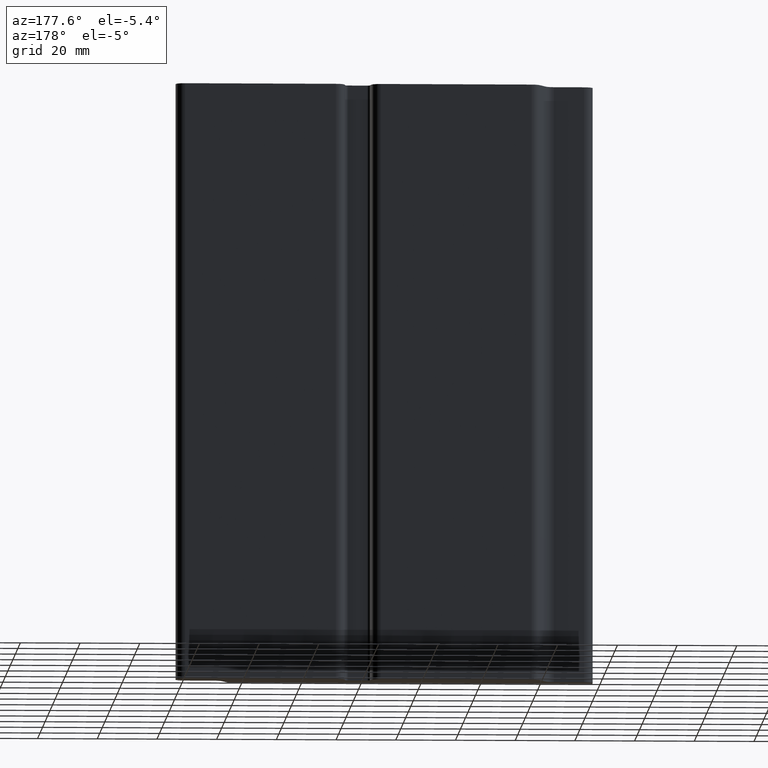
[diagram: clean part render]
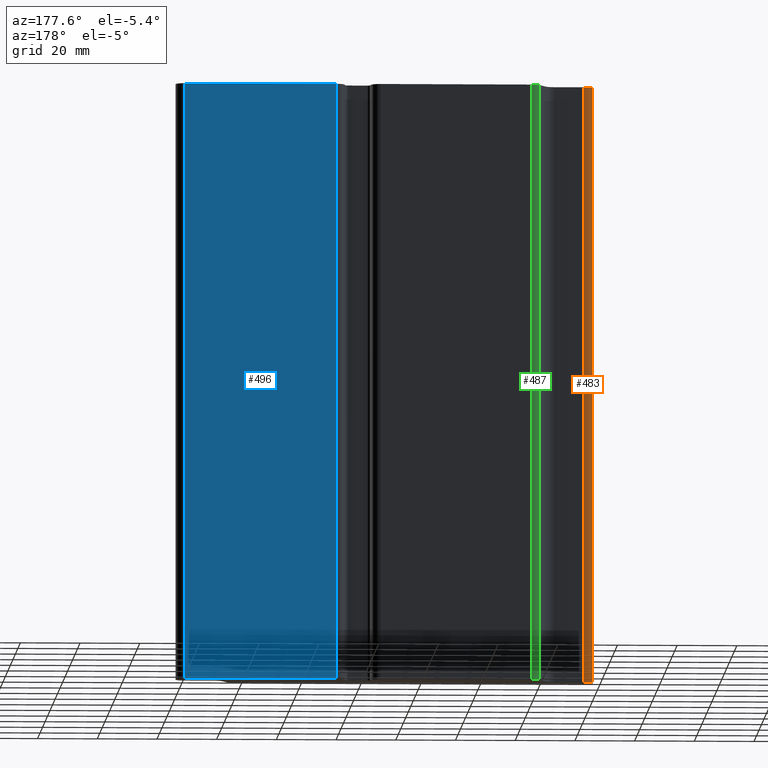
[diagram: same view with three faces highlighted in distinct colors, each labeled with its STEP entity id]
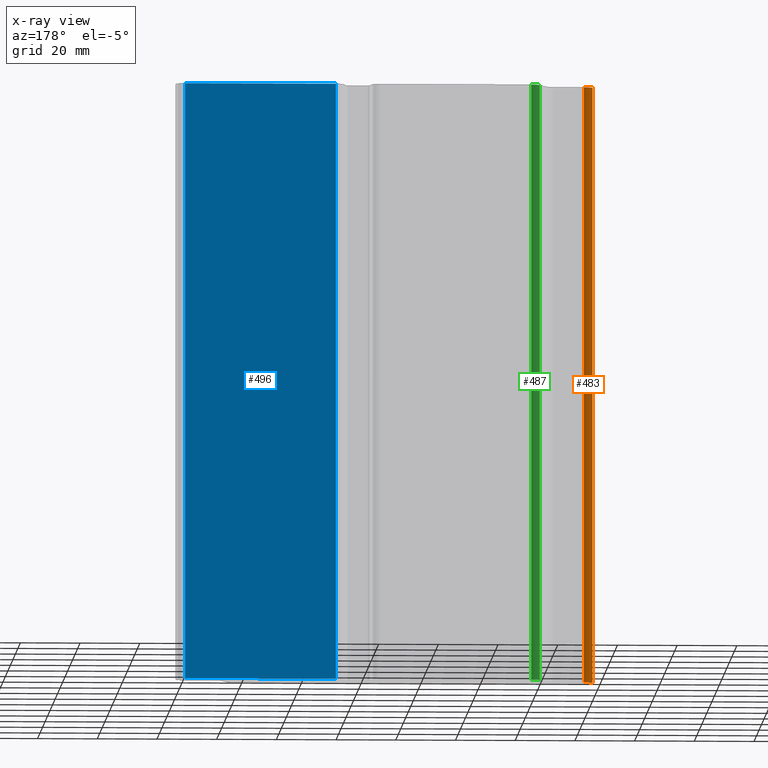
[diagram: x-ray of the same camera — body ghosted, the three highlighted faces saturated]
A machine part, auxiliary view with three faces highlighted in distinct colors.
The next image is the same camera in x-ray (body ghosted, the three faces saturated) — at least one of them is partly hidden behind the body in this view.
Their STEP definitions:

[orange] entity #483 — the highlighted cylindrical surface (edge-blend (fillet) strip) has radius 3 mm, axis along (0, 0, 1).
#35=FACE_OUTER_BOUND('',#61,.T.);
#61=EDGE_LOOP('',(#345,#346,#347,#348));
#93=LINE('',#756,#141);
#94=LINE('',#762,#142);
#141=VECTOR('',#605,10.);
#142=VECTOR('',#612,10.);
#183=CIRCLE('',#530,2.99999999998906);
#184=CIRCLE('',#531,2.99999999998906);
#213=VERTEX_POINT('',#752);
#214=VERTEX_POINT('',#754);
#215=VERTEX_POINT('',#758);
#216=VERTEX_POINT('',#760);
#267=EDGE_CURVE('',#213,#214,#93,.T.);
#268=EDGE_CURVE('',#215,#213,#183,.T.);
#269=EDGE_CURVE('',#216,#214,#184,.T.);
#270=EDGE_CURVE('',#215,#216,#94,.T.);
#345=ORIENTED_EDGE('',*,*,#268,.T.);
#346=ORIENTED_EDGE('',*,*,#267,.T.);
#347=ORIENTED_EDGE('',*,*,#269,.F.);
#348=ORIENTED_EDGE('',*,*,#270,.F.);
#468=CYLINDRICAL_SURFACE('',#529,2.99999999998906);
#483=ADVANCED_FACE('',(#35),#468,.T.);
#529=AXIS2_PLACEMENT_3D('',#757,#606,#607);
#530=AXIS2_PLACEMENT_3D('',#759,#608,#609);
#531=AXIS2_PLACEMENT_3D('',#761,#610,#611);
#605=DIRECTION('',(0.,0.,1.));
#606=DIRECTION('center_axis',(0.,0.,1.));
#607=DIRECTION('ref_axis',(2.96059473234455E-15,1.,0.));
#608=DIRECTION('center_axis',(0.,0.,1.));
#609=DIRECTION('ref_axis',(2.96059473234455E-15,1.,0.));
#610=DIRECTION('center_axis',(0.,0.,1.));
#611=DIRECTION('ref_axis',(2.96059473234455E-15,1.,0.));
#612=DIRECTION('',(0.,0.,1.));
#752=CARTESIAN_POINT('',(-78.9776404737594,6.00000000001094,0.));
#754=CARTESIAN_POINT('',(-78.9776404737594,6.00000000001094,200.));
#756=CARTESIAN_POINT('',(-78.9776404737594,6.00000000001094,0.));
#757=CARTESIAN_POINT('Origin',(-75.9776404737704,6.00000000001094,0.));
#758=CARTESIAN_POINT('',(-75.9776404737704,9.,0.));
#759=CARTESIAN_POINT('Origin',(-75.9776404737704,6.00000000001094,0.));
#760=CARTESIAN_POINT('',(-75.9776404737704,9.,200.));
#761=CARTESIAN_POINT('Origin',(-75.9776404737704,6.00000000001094,200.));
#762=CARTESIAN_POINT('',(-75.9776404737704,9.,0.));

[blue] entity #496 — the highlighted planar face has unit normal (0, 1, 0).
#24=PLANE('',#556);
#48=FACE_OUTER_BOUND('',#74,.T.);
#74=EDGE_LOOP('',(#397,#398,#399,#400));
#118=LINE('',#834,#166);
#119=LINE('',#837,#167);
#120=LINE('',#839,#168);
#121=LINE('',#840,#169);
#166=VECTOR('',#684,10.);
#167=VECTOR('',#687,10.);
#168=VECTOR('',#688,10.);
#169=VECTOR('',#689,10.);
#239=VERTEX_POINT('',#830);
#240=VERTEX_POINT('',#832);
#241=VERTEX_POINT('',#836);
#242=VERTEX_POINT('',#838);
#306=EDGE_CURVE('',#239,#240,#118,.T.);
#307=EDGE_CURVE('',#241,#239,#119,.T.);
#308=EDGE_CURVE('',#242,#240,#120,.T.);
#309=EDGE_CURVE('',#241,#242,#121,.T.);
#397=ORIENTED_EDGE('',*,*,#307,.T.);
#398=ORIENTED_EDGE('',*,*,#306,.T.);
#399=ORIENTED_EDGE('',*,*,#308,.F.);
#400=ORIENTED_EDGE('',*,*,#309,.F.);
#496=ADVANCED_FACE('',(#48),#24,.T.);
#556=AXIS2_PLACEMENT_3D('',#835,#685,#686);
#684=DIRECTION('',(0.,0.,1.));
#685=DIRECTION('center_axis',(3.60959461322725E-13,1.,0.));
#686=DIRECTION('ref_axis',(-1.,3.60959461322725E-13,0.));
#687=DIRECTION('',(-1.,3.60959461322725E-13,0.));
#688=DIRECTION('',(-1.,3.60959461322725E-13,0.));
#689=DIRECTION('',(0.,0.,1.));
#830=CARTESIAN_POINT('',(7.50000076708936,18.0000000000898,0.));
#832=CARTESIAN_POINT('',(7.50000076708936,18.0000000000898,200.));
#834=CARTESIAN_POINT('',(7.50000076708936,18.0000000000898,0.));
#835=CARTESIAN_POINT('Origin',(58.0223595263407,18.0000000000716,0.));
#836=CARTESIAN_POINT('',(58.0223595263407,18.0000000000716,0.));
#837=CARTESIAN_POINT('',(58.0223595263407,18.0000000000716,0.));
#838=CARTESIAN_POINT('',(58.0223595263407,18.0000000000716,200.));
#839=CARTESIAN_POINT('',(58.0223595263407,18.0000000000716,200.));
#840=CARTESIAN_POINT('',(58.0223595263407,18.0000000000716,0.));

[green] entity #487 — the highlighted cylindrical surface (edge-blend (fillet) strip) has radius 3 mm, axis along (0, 0, 1).
#39=FACE_OUTER_BOUND('',#65,.T.);
#65=EDGE_LOOP('',(#361,#362,#363,#364));
#101=LINE('',#780,#149);
#102=LINE('',#786,#150);
#149=VECTOR('',#629,10.);
#150=VECTOR('',#636,10.);
#187=CIRCLE('',#538,3.00000000003039);
#188=CIRCLE('',#539,3.00000000003039);
#221=VERTEX_POINT('',#776);
#222=VERTEX_POINT('',#778);
#223=VERTEX_POINT('',#782);
#224=VERTEX_POINT('',#784);
#279=EDGE_CURVE('',#221,#222,#101,.T.);
#280=EDGE_CURVE('',#223,#221,#187,.T.);
#281=EDGE_CURVE('',#224,#222,#188,.T.);
#282=EDGE_CURVE('',#223,#224,#102,.T.);
#361=ORIENTED_EDGE('',*,*,#280,.T.);
#362=ORIENTED_EDGE('',*,*,#279,.T.);
#363=ORIENTED_EDGE('',*,*,#281,.F.);
#364=ORIENTED_EDGE('',*,*,#282,.F.);
#470=CYLINDRICAL_SURFACE('',#537,3.00000000003039);
#487=ADVANCED_FACE('',(#39),#470,.T.);
#537=AXIS2_PLACEMENT_3D('',#781,#630,#631);
#538=AXIS2_PLACEMENT_3D('',#783,#632,#633);
#539=AXIS2_PLACEMENT_3D('',#785,#634,#635);
#629=DIRECTION('',(0.,0.,1.));
#630=DIRECTION('center_axis',(0.,0.,1.));
#631=DIRECTION('ref_axis',(-1.76747505518535E-12,1.,0.));
#632=DIRECTION('center_axis',(0.,0.,1.));
#633=DIRECTION('ref_axis',(-1.76747505518535E-12,1.,0.));
#634=DIRECTION('center_axis',(0.,0.,1.));
#635=DIRECTION('ref_axis',(-1.76747505518535E-12,1.,0.));
#636=DIRECTION('',(0.,0.,1.));
#776=CARTESIAN_POINT('',(-60.7629958993189,16.2202099291639,0.));
#778=CARTESIAN_POINT('',(-60.7629958993189,16.2202099291639,200.));
#780=CARTESIAN_POINT('',(-60.7629958993189,16.2202099291639,0.));
#781=CARTESIAN_POINT('Origin',(-58.0223595263633,14.9999999999242,0.));
#782=CARTESIAN_POINT('',(-58.0223595263686,17.9999999999546,0.));
#783=CARTESIAN_POINT('Origin',(-58.0223595263633,14.9999999999242,0.));
#784=CARTESIAN_POINT('',(-58.0223595263686,17.9999999999546,200.));
#785=CARTESIAN_POINT('Origin',(-58.0223595263633,14.9999999999242,200.));
#786=CARTESIAN_POINT('',(-58.0223595263686,17.9999999999546,0.));